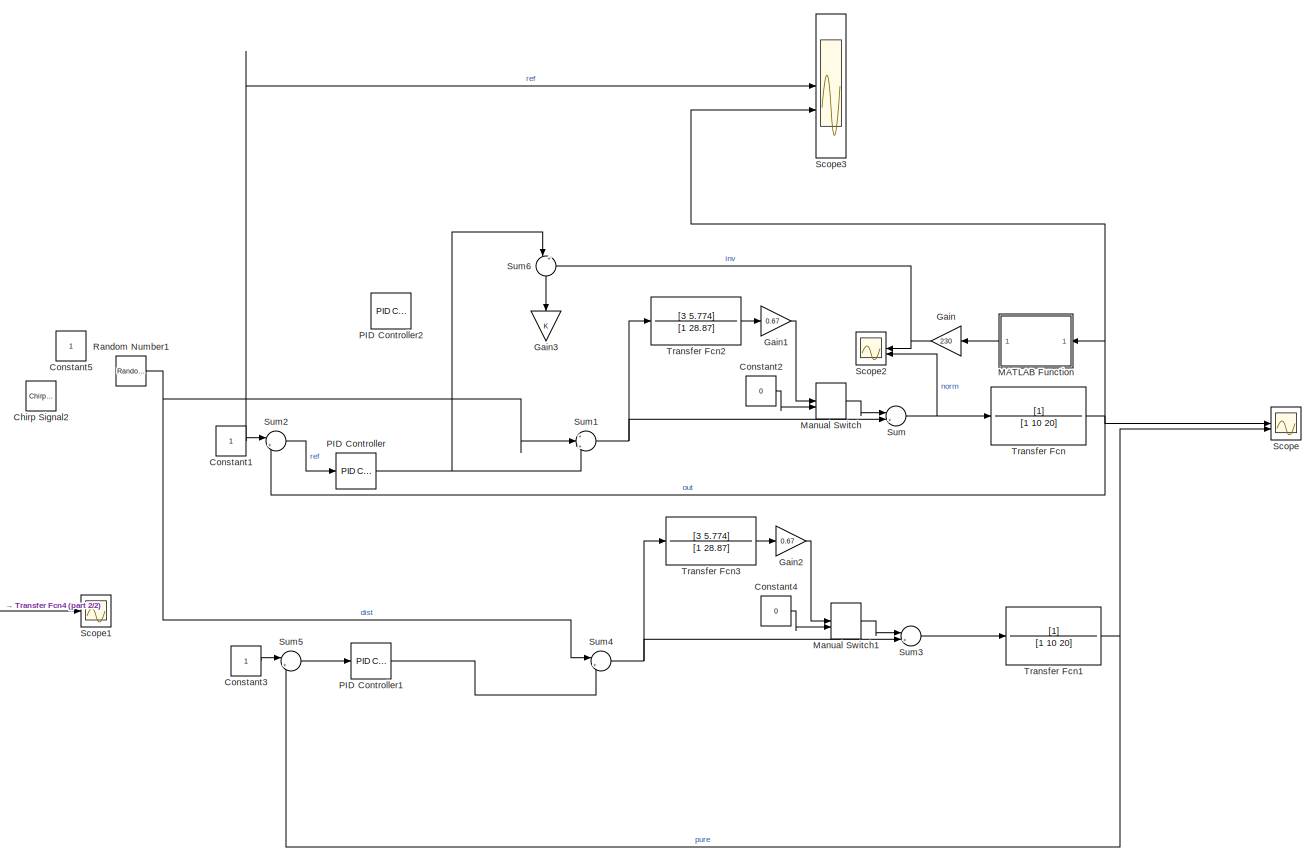
[diagram: root canvas - part 1/2, most of the canvas]
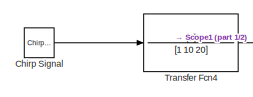
[diagram: root canvas - part 2/2, bottom left region]
MODEL slx_049636e26d51
KIND model
CONFIG AbsTol = auto
CONFIG EnableMultiTasking = off
CONFIG FixedStep = auto
CONFIG MaxStep = auto
CONFIG MinStep = auto
CONFIG RelTol = 1e-8
CONFIG SampleTimeConstraint = Unconstrained
CONFIG SolverName = VariableStepAuto
CONFIG StartTime = 0.0
CONFIG StopTime = 200
BLOCK [Reference] Chirp Signal  REF=simulink/Sources/Chirp Signal
  SourceBlock = simulink/Sources/Chirp Signal
  SourceType = chirp
BLOCK [Reference] Chirp Signal2  REF=simulink/Sources/Chirp Signal
  SourceBlock = simulink/Sources/Chirp Signal
  SourceType = chirp
BLOCK [Constant] Constant1
BLOCK [Constant] Constant2
  Value = 0
BLOCK [Constant] Constant3
BLOCK [Constant] Constant4
  Value = 0
BLOCK [Constant] Constant5
BLOCK [Gain] Gain
  Gain = 230
  NameLocation = top
BLOCK [Gain] Gain1
  Gain = 0.67
BLOCK [Gain] Gain2
  Gain = 0.67
BLOCK [Gain] Gain3
  NameLocation = left
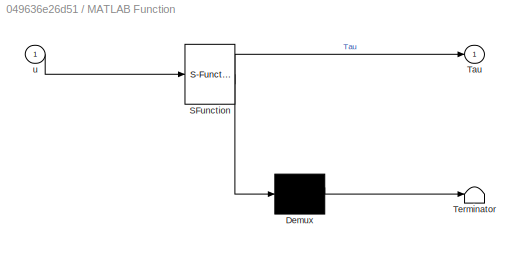
BLOCK [SubSystem] MATLAB Function
  ErrorFcn = Stateflow.Translate.translate
  LibrarySourceBlock = simulink/User-Defined\nFunctions/MATLAB Function
  NameLocation = top
  PermitHierarchicalResolution = ExplicitOnly
  SFBlockType = MATLAB Function
  TreatAsAtomicUnit = on
BLOCK [Demux] MATLAB Function/ Demux 
  Outputs = 1
BLOCK [S-Function] MATLAB Function/ SFunction 
  EnableBusSupport = on
  FunctionName = sf_sfun
  PortCounts = [1 2]
  SFcnIsStateOwnerBlock = off
  SFunctionDeploymentMode = off
  Tag = Stateflow S-Function 2
BLOCK [Terminator] MATLAB Function/ Terminator 
BLOCK [Outport] MATLAB Function/Tau
BLOCK [Inport] MATLAB Function/u
BLOCK [ManualSwitch] Manual Switch
BLOCK [ManualSwitch] Manual Switch1
  CurrentSetting = 0
BLOCK [Reference] PID Controller  REF=slpidlib/PID Controller
  LibrarySourceBlock = simulink/Continuous/PID Controller
  SourceBlock = slpidlib/PID Controller
  SourceType = PID 1dof
BLOCK [Reference] PID Controller1  REF=slpidlib/PID Controller
  LibrarySourceBlock = simulink/Continuous/PID Controller
  SourceBlock = slpidlib/PID Controller
  SourceType = PID 1dof
BLOCK [Reference] PID Controller2  REF=slpidlib/PID Controller
  LibrarySourceBlock = simulink/Continuous/PID Controller
  SourceBlock = slpidlib/PID Controller
  SourceType = PID 1dof
BLOCK [RandomNumber] Random Number1
  SampleTime = 0.1
BLOCK [Scope] Scope
  Floating = off
  NumInputPorts = 2
  ScopeSpecificationString = Simulink.scopes.TimeScopeBlockCfg('CurrentConfiguration', extmgr.ConfigurationSet(extmgr.Configuration('Core','General UI',true),extmgr.Configuration('Core','Source UI',true),extmgr.Configuration('Sources','WiredSimulink',true),extmgr.Configuration('Visuals','Time Domain',true,'SerializedDisplays',{struct('MinYLimReal','-0.13495','MaxYLimReal','1.21453','YLabelReal','','MinYLimMag','0.00000','MaxY...<+1426ch>
BLOCK [Scope] Scope1
  Floating = off
  NumInputPorts = 1
  ScopeSpecificationString = Simulink.scopes.TimeScopeBlockCfg('CurrentConfiguration', extmgr.ConfigurationSet(extmgr.Configuration('Core','General UI',true),extmgr.Configuration('Core','Source UI',true),extmgr.Configuration('Sources','WiredSimulink',true,'DataLoggingVariableName','ScopeData1'),extmgr.Configuration('Visuals','Time Domain',true,'SerializedDisplays',{struct('MinYLimReal','-0.06128','MaxYLimReal','0.06197','YLab...<+1401ch>
BLOCK [Scope] Scope2
  Floating = off
  NameLocation = top
  NumInputPorts = 2
  ScopeSpecificationString = Simulink.scopes.TimeScopeBlockCfg('CurrentConfiguration', extmgr.ConfigurationSet(extmgr.Configuration('Core','General UI',true),extmgr.Configuration('Core','Source UI',true),extmgr.Configuration('Sources','WiredSimulink',true,'DataLoggingVariableName','ScopeData2'),extmgr.Configuration('Visuals','Time Domain',true,'SerializedDisplays',{struct('MinYLimReal','-37.64185','MaxYLimReal','38.96844','YL...<+1402ch>
BLOCK [Scope] Scope3
  Floating = off
  NumInputPorts = 2
  ScopeSpecificationString = Simulink.scopes.TimeScopeBlockCfg('CurrentConfiguration', extmgr.ConfigurationSet(extmgr.Configuration('Core','General UI',true),extmgr.Configuration('Core','Source UI',true),extmgr.Configuration('Sources','WiredSimulink',true,'DataLoggingVariableName','ScopeData3'),extmgr.Configuration('Visuals','Time Domain',true,'SerializedDisplays',{struct('MinYLimReal','-0.13495','MaxYLimReal','1.21453','YLab...<+1469ch>
BLOCK [Sum] Sum
  Inputs = |++
BLOCK [Sum] Sum1
  Inputs = +|++
BLOCK [Sum] Sum2
  Inputs = |+-
BLOCK [Sum] Sum3
  Inputs = |++
BLOCK [Sum] Sum4
  Inputs = |++
BLOCK [Sum] Sum5
  Inputs = |+-
BLOCK [Sum] Sum6
  Inputs = |+-
  NameLocation = left
BLOCK [TransferFcn] Transfer Fcn
  Denominator = [1 10 20]
BLOCK [TransferFcn] Transfer Fcn1
  Denominator = [1 10 20]
BLOCK [TransferFcn] Transfer Fcn2
  Denominator = [1 28.87]
  Numerator = [3 5.774]
BLOCK [TransferFcn] Transfer Fcn3
  Denominator = [1 28.87]
  Numerator = [3 5.774]
BLOCK [TransferFcn] Transfer Fcn4
  Denominator = [1 10 20]
LINE Chirp Signal:1 -> Transfer Fcn4:1
NET Constant1:1 -> Scope3:1, Sum2:1
LINE Constant2:1 -> Manual Switch:2
LINE Constant3:1 -> Sum5:1
LINE Constant4:1 -> Manual Switch1:2
LINE Gain1:1 -> Manual Switch:1
LINE Gain2:1 -> Manual Switch1:1
NET Gain:1 -> Scope2:1, Sum6:2
LINE MATLAB Function:1 -> Gain:1
LINE Manual Switch1:1 -> Sum3:1
LINE Manual Switch:1 -> Sum:1
LINE PID Controller1:1 -> Sum4:2
NET PID Controller:1 -> Sum1:3, Sum6:1
NET Random Number1:1 -> Sum1:2, Sum4:1
NET Sum1:1 -> Sum:2, Transfer Fcn2:1
LINE Sum2:1 -> PID Controller:1
LINE Sum3:1 -> Transfer Fcn1:1
NET Sum4:1 -> Sum3:2, Transfer Fcn3:1
LINE Sum5:1 -> PID Controller1:1
LINE Sum6:1 -> Gain3:1
NET Sum:1 -> Scope2:2, Transfer Fcn:1
NET Transfer Fcn1:1 -> Scope:2, Sum5:2
LINE Transfer Fcn2:1 -> Gain1:1
LINE Transfer Fcn3:1 -> Gain2:1
LINE Transfer Fcn4:1 -> Scope1:1
NET Transfer Fcn:1 -> MATLAB Function:1, Scope3:2, Scope:1, Sum2:2
note: NET lines group one-source signal fan-out (src -> all destinations, sorted); 1:1 wires keep LINE
CHART MATLAB Function states=1 transitions=1
  STATE_LABEL 'eML_blk_kernel()'
  STATE_LABEL 'SCRIPT:\nfunction Tau = fcn(u)\n\n\nw0 =   [0.1109    1.8951;\n        0.3359    1.7935;\n        0.0917   -0.4355;\n        0.0304   -0.8728;\n       -0.5977   -0.4124;\n       -0.5625   -0.6319;\n       -0.0741   -0.3888;\n        0.1372   -0.2209;\n        0.1885   -0.2184;\n       -0.0584   -0.5510];\n\nw1 = [0.0137   -0.2848   -0.7196   -0.4261    0.0613   -0.6198    0.5285    0.1554    0.1733   -0.1079   -...<+160ch>'
CHART  states=0 transitions=0
